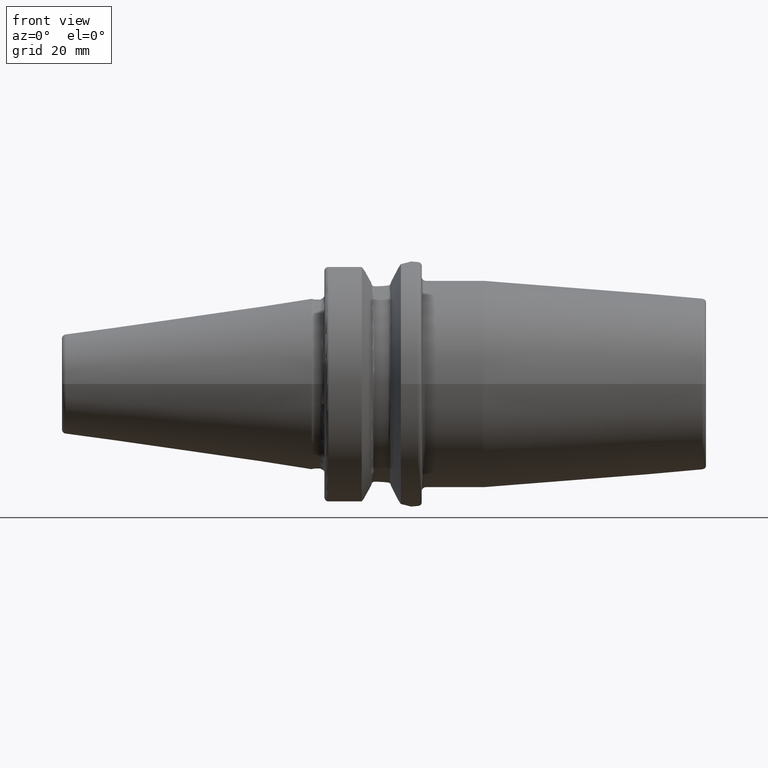
[diagram: clean part render]
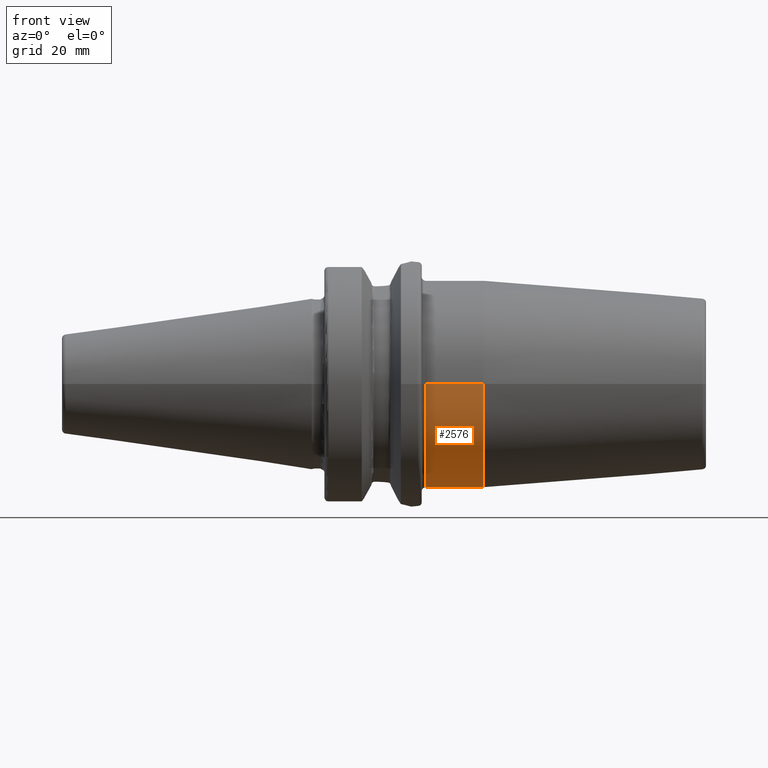
[diagram: same view with one face highlighted and labeled with its STEP entity id]
A machine part, front view. The second image highlights one B-rep face of the part: STEP entity #2576.
In plain terms, the highlighted cylindrical surface (partial cylindrical patch) has radius 26.5 mm, axis along (1, 0, 0).
Its self-contained STEP definition (entity closure, byte-faithful):
#866=CARTESIAN_POINT('',(2.8E1,0.E0,0.E0));
#867=DIRECTION('',(1.E0,0.E0,0.E0));
#868=DIRECTION('',(0.E0,-1.E0,0.E0));
#869=AXIS2_PLACEMENT_3D('',#866,#867,#868);
#871=DIRECTION('',(-1.E0,0.E0,-7.646977928188E-14));
#872=VECTOR('',#871,1.482207868721E1);
#873=CARTESIAN_POINT('',(4.282207868721E1,-2.65E1,0.E0));
#874=LINE('',#873,#872);
#875=CARTESIAN_POINT('',(4.282207868721E1,0.E0,0.E0));
#876=DIRECTION('',(-1.E0,0.E0,0.E0));
#877=DIRECTION('',(0.E0,1.E0,0.E0));
#878=AXIS2_PLACEMENT_3D('',#875,#876,#877);
#880=DIRECTION('',(-1.E0,0.E0,7.642346807084E-14));
#881=VECTOR('',#880,1.482207868721E1);
#882=CARTESIAN_POINT('',(4.282207868721E1,2.65E1,0.E0));
#883=LINE('',#882,#881);
#1405=CARTESIAN_POINT('',(2.8E1,-2.65E1,0.E0));
#1406=CARTESIAN_POINT('',(2.8E1,2.65E1,0.E0));
#1407=VERTEX_POINT('',#1405);
#1408=VERTEX_POINT('',#1406);
#1409=CARTESIAN_POINT('',(4.282207868721E1,2.65E1,0.E0));
#1410=VERTEX_POINT('',#1409);
#1411=CARTESIAN_POINT('',(4.282207868721E1,-2.65E1,0.E0));
#1412=VERTEX_POINT('',#1411);
#2564=CARTESIAN_POINT('',(2.335E1,0.E0,0.E0));
#2565=DIRECTION('',(1.E0,0.E0,0.E0));
#2566=DIRECTION('',(0.E0,-1.E0,0.E0));
#2567=AXIS2_PLACEMENT_3D('',#2564,#2565,#2566);
#2568=CYLINDRICAL_SURFACE('',#2567,2.65E1);
#2569=ORIENTED_EDGE('',*,*,#2529,.F.);
#2570=ORIENTED_EDGE('',*,*,#2559,.F.);
#2572=ORIENTED_EDGE('',*,*,#2571,.F.);
#2573=ORIENTED_EDGE('',*,*,#2555,.T.);
#2574=EDGE_LOOP('',(#2569,#2570,#2572,#2573));
#2575=FACE_OUTER_BOUND('',#2574,.F.);
#2576=ADVANCED_FACE('',(#2575),#2568,.T.);
#870=CIRCLE('',#869,2.65E1);
#879=CIRCLE('',#878,2.65E1);
#2529=EDGE_CURVE('',#1407,#1408,#870,.T.);
#2555=EDGE_CURVE('',#1410,#1408,#883,.T.);
#2559=EDGE_CURVE('',#1412,#1407,#874,.T.);
#2571=EDGE_CURVE('',#1410,#1412,#879,.T.);